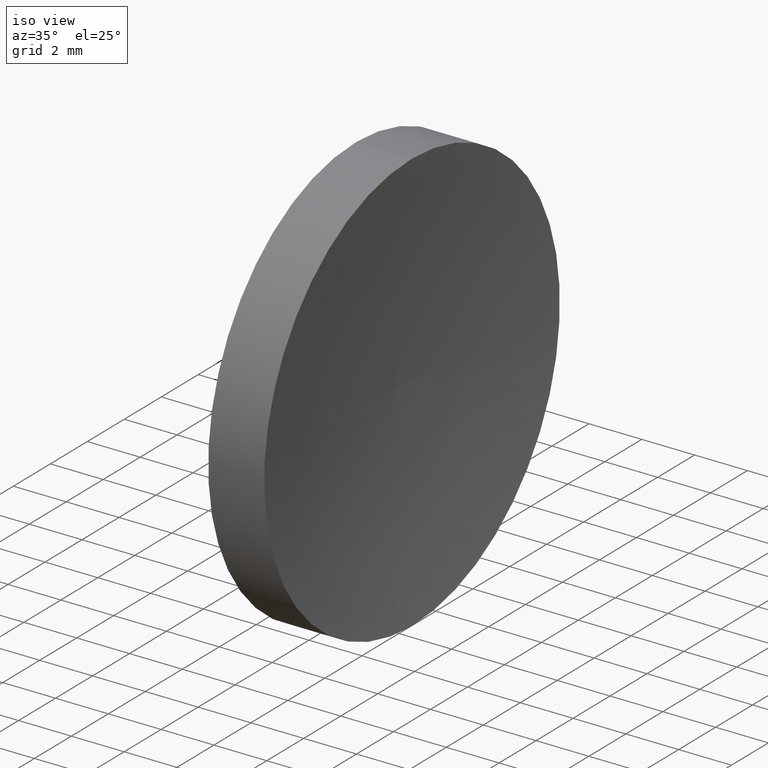
[diagram: clean part render]
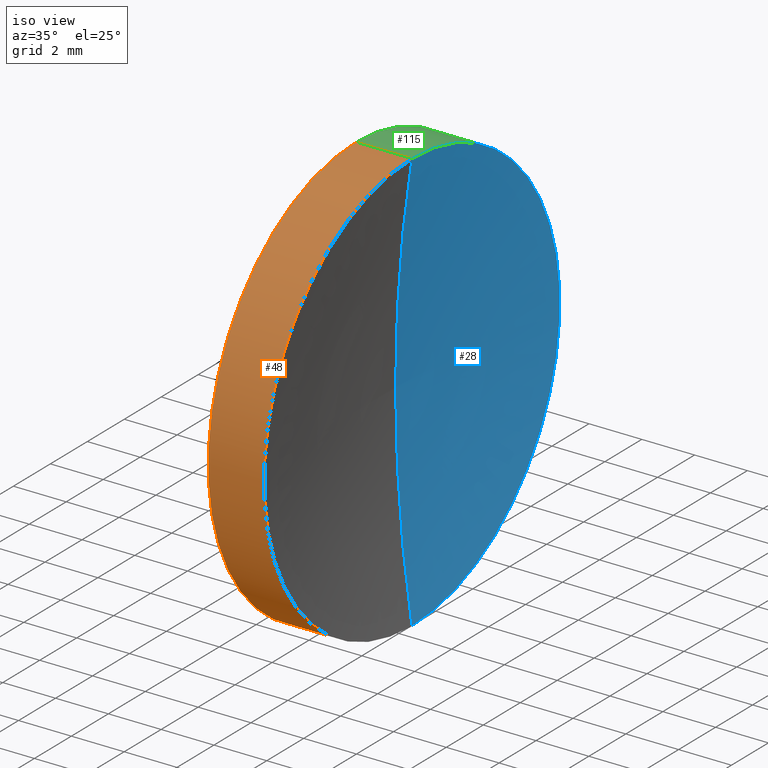
[diagram: same view with three faces highlighted in distinct colors, each labeled with its STEP entity id]
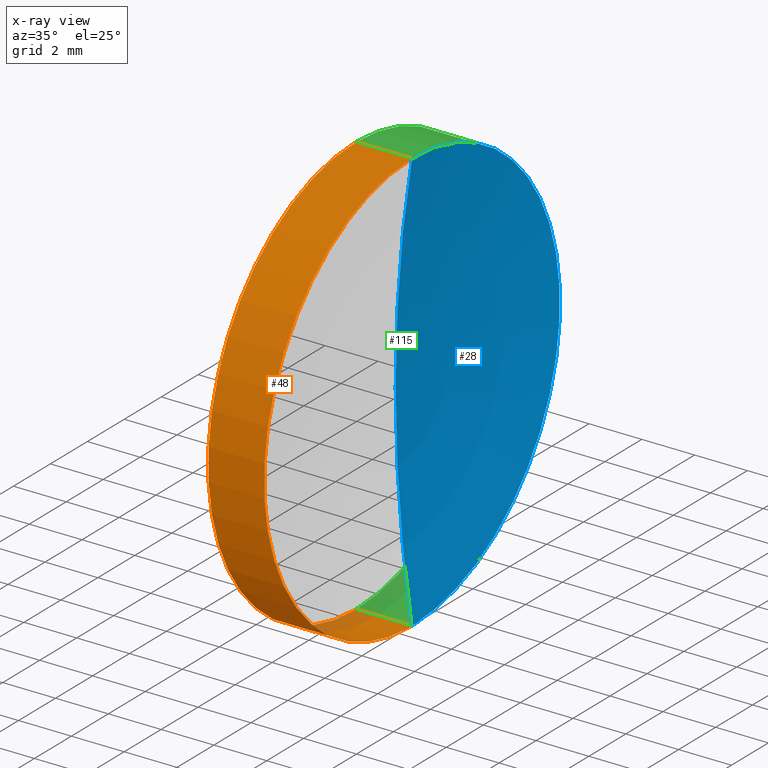
[diagram: x-ray of the same camera — body ghosted, the three highlighted faces saturated]
A machine part, iso view with three faces highlighted in distinct colors.
The next image is the same camera in x-ray (body ghosted, the three faces saturated) — at least one of them is partly hidden behind the body in this view.
Their STEP definitions:

[orange] entity #48 — the highlighted cylindrical surface (partial cylindrical patch) has radius 8 mm, axis along (-1, -0, -0).
#3 = AXIS2_PLACEMENT_3D ( 'NONE', #114, #64, #141 ) ;
#6 = CARTESIAN_POINT ( 'NONE',  ( 44.31915269315436500, 26.08904114919495900, 8.000000000000003600 ) ) ;
#8 = VERTEX_POINT ( 'NONE', #6 ) ;
#11 = DIRECTION ( 'NONE',  ( -1.000000000000000000, -0.0000000000000000000, -0.0000000000000000000 ) ) ;
#15 = ORIENTED_EDGE ( 'NONE', *, *, #86, .T. ) ;
#18 = ORIENTED_EDGE ( 'NONE', *, *, #32, .F. ) ;
#21 = AXIS2_PLACEMENT_3D ( 'NONE', #122, #155, #96 ) ;
#32 = EDGE_CURVE ( 'NONE', #100, #8, #84, .T. ) ;
#45 = EDGE_LOOP ( 'NONE', ( #111, #130, #15, #18 ) ) ;
#48 = ADVANCED_FACE ( 'NONE', ( #95 ), #80, .T. ) ;
#56 = VERTEX_POINT ( 'NONE', #157 ) ;
#63 = CARTESIAN_POINT ( 'NONE',  ( 42.44986111413682300, 26.08904114919495900, 0.0000000000000000000 ) ) ;
#64 = DIRECTION ( 'NONE',  ( -1.000000000000000000, -0.0000000000000000000, -0.0000000000000000000 ) ) ;
#65 = CARTESIAN_POINT ( 'NONE',  ( 44.31915269315436500, 26.08904114919495900, -8.000000000000003600 ) ) ;
#70 = VECTOR ( 'NONE', #93, 1000.000000000000000 ) ;
#72 = LINE ( 'NONE', #77, #70 ) ;
#74 = AXIS2_PLACEMENT_3D ( 'NONE', #63, #11, #92 ) ;
#77 = CARTESIAN_POINT ( 'NONE',  ( 42.44986111413682300, 26.08904114919495900, -8.000000000000000000 ) ) ;
#80 = CYLINDRICAL_SURFACE ( 'NONE', #74, 8.000000000000000000 ) ;
#82 = VERTEX_POINT ( 'NONE', #90 ) ;
#84 = CIRCLE ( 'NONE', #3, 8.000000000000003600 ) ;
#86 = EDGE_CURVE ( 'NONE', #56, #8, #138, .T. ) ;
#90 = CARTESIAN_POINT ( 'NONE',  ( 46.43730955564588200, 26.08904114919495900, -8.000000000000007100 ) ) ;
#92 = DIRECTION ( 'NONE',  ( 0.0000000000000000000, 0.0000000000000000000, 1.000000000000000000 ) ) ;
#93 = DIRECTION ( 'NONE',  ( -1.000000000000000000, -0.0000000000000000000, -0.0000000000000000000 ) ) ;
#95 = FACE_OUTER_BOUND ( 'NONE', #45, .T. ) ;
#96 = DIRECTION ( 'NONE',  ( 0.0000000000000000000, 0.0000000000000000000, 1.000000000000000000 ) ) ;
#100 = VERTEX_POINT ( 'NONE', #65 ) ;
#105 = EDGE_CURVE ( 'NONE', #82, #100, #72, .T. ) ;
#106 = CARTESIAN_POINT ( 'NONE',  ( 42.44986111413682300, 26.08904114919495900, 8.000000000000000000 ) ) ;
#107 = VECTOR ( 'NONE', #156, 1000.000000000000000 ) ;
#111 = ORIENTED_EDGE ( 'NONE', *, *, #105, .F. ) ;
#114 = CARTESIAN_POINT ( 'NONE',  ( 44.31915269315436500, 26.08904114919495900, 0.0000000000000000000 ) ) ;
#122 = CARTESIAN_POINT ( 'NONE',  ( 46.43730955564588200, 26.08904114919495900, 0.0000000000000000000 ) ) ;
#130 = ORIENTED_EDGE ( 'NONE', *, *, #149, .T. ) ;
#138 = LINE ( 'NONE', #106, #107 ) ;
#139 = CIRCLE ( 'NONE', #21, 7.999999999999996400 ) ;
#141 = DIRECTION ( 'NONE',  ( 0.0000000000000000000, 0.0000000000000000000, 1.000000000000000000 ) ) ;
#149 = EDGE_CURVE ( 'NONE', #82, #56, #139, .T. ) ;
#155 = DIRECTION ( 'NONE',  ( -1.000000000000000000, -0.0000000000000000000, -0.0000000000000000000 ) ) ;
#156 = DIRECTION ( 'NONE',  ( -1.000000000000000000, -0.0000000000000000000, -0.0000000000000000000 ) ) ;
#157 = CARTESIAN_POINT ( 'NONE',  ( 46.43730955564588200, 26.08904114919495900, 8.000000000000007100 ) ) ;

[blue] entity #28 — the highlighted toroidal blend (fillet) surface has major radius 0.0337 mm and minor (blend) radius 51.64 mm.
#5 = DIRECTION ( 'NONE',  ( -0.0000000000000000000, 1.000000000000000000, 1.224646799147353200E-016 ) ) ;
#12 = CIRCLE ( 'NONE', #25, 51.64000000000000800 ) ;
#17 = EDGE_CURVE ( 'NONE', #56, #82, #120, .T. ) ;
#19 = EDGE_CURVE ( 'NONE', #82, #127, #12, .T. ) ;
#24 = DIRECTION ( 'NONE',  ( 0.0000000000000000000, -1.343705248626496300E-016, 1.000000000000000000 ) ) ;
#25 = AXIS2_PLACEMENT_3D ( 'NONE', #85, #5, #24 ) ;
#28 = ADVANCED_FACE ( 'NONE', ( #52 ), #133, .F. ) ;
#33 = EDGE_LOOP ( 'NONE', ( #68, #101, #118 ) ) ;
#42 = DIRECTION ( 'NONE',  ( 0.0000000000000000000, 0.0000000000000000000, -1.000000000000000000 ) ) ;
#43 = CARTESIAN_POINT ( 'NONE',  ( 97.45914170954007700, 26.08904114919495900, 0.03368067048223344400 ) ) ;
#49 = AXIS2_PLACEMENT_3D ( 'NONE', #121, #102, #62 ) ;
#50 = CARTESIAN_POINT ( 'NONE',  ( 45.81915269315437200, 26.08904114919495900, 0.0000000000000000000 ) ) ;
#52 = FACE_OUTER_BOUND ( 'NONE', #33, .T. ) ;
#56 = VERTEX_POINT ( 'NONE', #157 ) ;
#59 = DIRECTION ( 'NONE',  ( 0.0000000000000000000, 0.0000000000000000000, 1.000000000000000000 ) ) ;
#62 = DIRECTION ( 'NONE',  ( 0.0000000000000000000, 0.0000000000000000000, 1.000000000000000000 ) ) ;
#68 = ORIENTED_EDGE ( 'NONE', *, *, #19, .F. ) ;
#79 = CIRCLE ( 'NONE', #161, 51.64000000000000800 ) ;
#82 = VERTEX_POINT ( 'NONE', #90 ) ;
#85 = CARTESIAN_POINT ( 'NONE',  ( 97.45914170954007700, 26.08904114919495900, -0.03368067048223344400 ) ) ;
#90 = CARTESIAN_POINT ( 'NONE',  ( 46.43730955564588200, 26.08904114919495900, -8.000000000000007100 ) ) ;
#101 = ORIENTED_EDGE ( 'NONE', *, *, #17, .F. ) ;
#102 = DIRECTION ( 'NONE',  ( -1.000000000000000000, -0.0000000000000000000, -0.0000000000000000000 ) ) ;
#113 = DIRECTION ( 'NONE',  ( -1.000000000000000000, -0.0000000000000000000, -0.0000000000000000000 ) ) ;
#118 = ORIENTED_EDGE ( 'NONE', *, *, #147, .T. ) ;
#120 = CIRCLE ( 'NONE', #140, 7.999999999999996400 ) ;
#121 = CARTESIAN_POINT ( 'NONE',  ( 97.45914170954007700, 26.08904114919495900, 0.0000000000000000000 ) ) ;
#127 = VERTEX_POINT ( 'NONE', #50 ) ;
#132 = DIRECTION ( 'NONE',  ( 0.0000000000000000000, -1.000000000000000000, 0.0000000000000000000 ) ) ;
#133 = TOROIDAL_SURFACE ( 'NONE', #49, 0.03368067048223344400, 51.64000000000000800 ) ;
#136 = CARTESIAN_POINT ( 'NONE',  ( 46.43730955564588200, 26.08904114919495900, 0.0000000000000000000 ) ) ;
#140 = AXIS2_PLACEMENT_3D ( 'NONE', #136, #113, #59 ) ;
#147 = EDGE_CURVE ( 'NONE', #56, #127, #79, .T. ) ;
#157 = CARTESIAN_POINT ( 'NONE',  ( 46.43730955564588200, 26.08904114919495900, 8.000000000000007100 ) ) ;
#161 = AXIS2_PLACEMENT_3D ( 'NONE', #43, #132, #42 ) ;

[green] entity #115 — the highlighted cylindrical surface (partial cylindrical patch) has radius 8 mm, axis along (-1, -0, -0).
#2 = ORIENTED_EDGE ( 'NONE', *, *, #86, .F. ) ;
#6 = CARTESIAN_POINT ( 'NONE',  ( 44.31915269315436500, 26.08904114919495900, 8.000000000000003600 ) ) ;
#8 = VERTEX_POINT ( 'NONE', #6 ) ;
#10 = AXIS2_PLACEMENT_3D ( 'NONE', #51, #75, #142 ) ;
#17 = EDGE_CURVE ( 'NONE', #56, #82, #120, .T. ) ;
#31 = EDGE_LOOP ( 'NONE', ( #145, #71, #152, #2 ) ) ;
#38 = DIRECTION ( 'NONE',  ( -1.000000000000000000, -0.0000000000000000000, -0.0000000000000000000 ) ) ;
#40 = CARTESIAN_POINT ( 'NONE',  ( 42.44986111413682300, 26.08904114919495900, 0.0000000000000000000 ) ) ;
#47 = EDGE_CURVE ( 'NONE', #8, #100, #150, .T. ) ;
#51 = CARTESIAN_POINT ( 'NONE',  ( 44.31915269315436500, 26.08904114919495900, 0.0000000000000000000 ) ) ;
#56 = VERTEX_POINT ( 'NONE', #157 ) ;
#58 = AXIS2_PLACEMENT_3D ( 'NONE', #40, #38, #104 ) ;
#59 = DIRECTION ( 'NONE',  ( 0.0000000000000000000, 0.0000000000000000000, 1.000000000000000000 ) ) ;
#65 = CARTESIAN_POINT ( 'NONE',  ( 44.31915269315436500, 26.08904114919495900, -8.000000000000003600 ) ) ;
#70 = VECTOR ( 'NONE', #93, 1000.000000000000000 ) ;
#71 = ORIENTED_EDGE ( 'NONE', *, *, #105, .T. ) ;
#72 = LINE ( 'NONE', #77, #70 ) ;
#75 = DIRECTION ( 'NONE',  ( -1.000000000000000000, -0.0000000000000000000, -0.0000000000000000000 ) ) ;
#77 = CARTESIAN_POINT ( 'NONE',  ( 42.44986111413682300, 26.08904114919495900, -8.000000000000000000 ) ) ;
#82 = VERTEX_POINT ( 'NONE', #90 ) ;
#83 = CYLINDRICAL_SURFACE ( 'NONE', #58, 8.000000000000000000 ) ;
#86 = EDGE_CURVE ( 'NONE', #56, #8, #138, .T. ) ;
#87 = FACE_OUTER_BOUND ( 'NONE', #31, .T. ) ;
#90 = CARTESIAN_POINT ( 'NONE',  ( 46.43730955564588200, 26.08904114919495900, -8.000000000000007100 ) ) ;
#93 = DIRECTION ( 'NONE',  ( -1.000000000000000000, -0.0000000000000000000, -0.0000000000000000000 ) ) ;
#100 = VERTEX_POINT ( 'NONE', #65 ) ;
#104 = DIRECTION ( 'NONE',  ( 0.0000000000000000000, 0.0000000000000000000, 1.000000000000000000 ) ) ;
#105 = EDGE_CURVE ( 'NONE', #82, #100, #72, .T. ) ;
#106 = CARTESIAN_POINT ( 'NONE',  ( 42.44986111413682300, 26.08904114919495900, 8.000000000000000000 ) ) ;
#107 = VECTOR ( 'NONE', #156, 1000.000000000000000 ) ;
#113 = DIRECTION ( 'NONE',  ( -1.000000000000000000, -0.0000000000000000000, -0.0000000000000000000 ) ) ;
#115 = ADVANCED_FACE ( 'NONE', ( #87 ), #83, .T. ) ;
#120 = CIRCLE ( 'NONE', #140, 7.999999999999996400 ) ;
#136 = CARTESIAN_POINT ( 'NONE',  ( 46.43730955564588200, 26.08904114919495900, 0.0000000000000000000 ) ) ;
#138 = LINE ( 'NONE', #106, #107 ) ;
#140 = AXIS2_PLACEMENT_3D ( 'NONE', #136, #113, #59 ) ;
#142 = DIRECTION ( 'NONE',  ( 0.0000000000000000000, 0.0000000000000000000, 1.000000000000000000 ) ) ;
#145 = ORIENTED_EDGE ( 'NONE', *, *, #17, .T. ) ;
#150 = CIRCLE ( 'NONE', #10, 8.000000000000003600 ) ;
#152 = ORIENTED_EDGE ( 'NONE', *, *, #47, .F. ) ;
#156 = DIRECTION ( 'NONE',  ( -1.000000000000000000, -0.0000000000000000000, -0.0000000000000000000 ) ) ;
#157 = CARTESIAN_POINT ( 'NONE',  ( 46.43730955564588200, 26.08904114919495900, 8.000000000000007100 ) ) ;